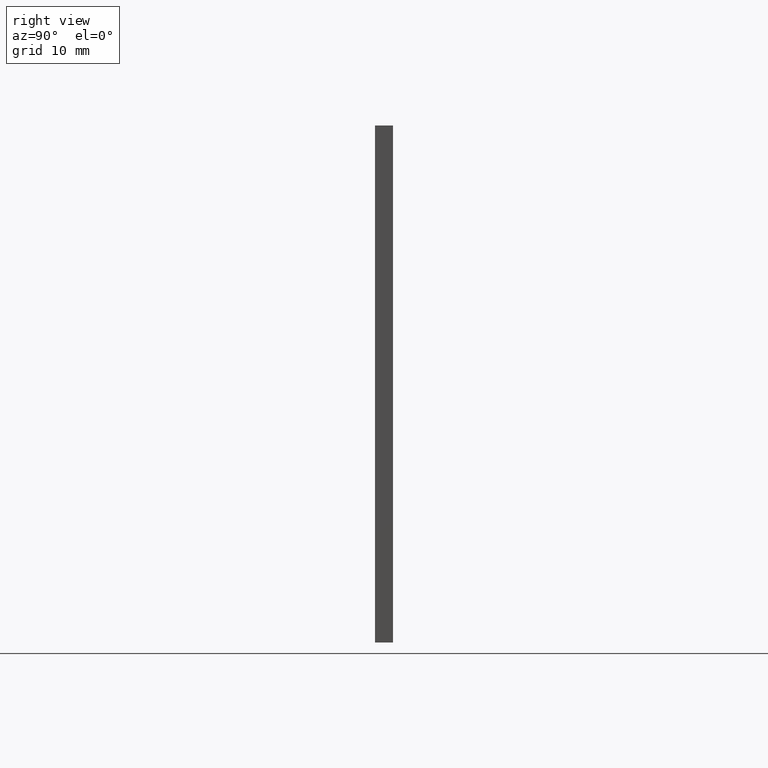
[diagram: clean part render]
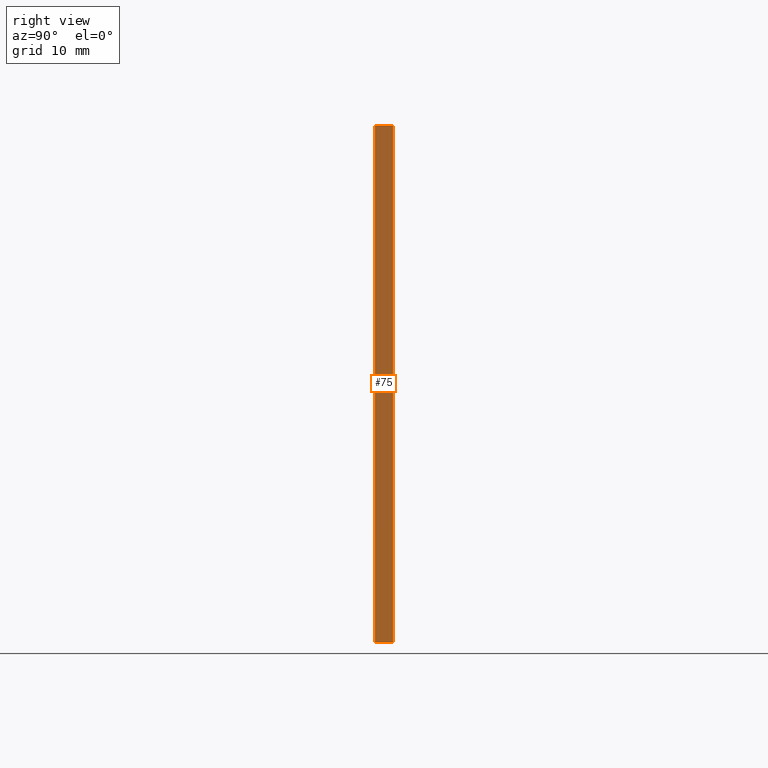
[diagram: same view with one face highlighted and labeled with its STEP entity id]
A machine part, right view. The second image highlights one B-rep face of the part: STEP entity #75.
In plain terms, the highlighted planar face has unit normal (-1, 0, 0).
Its self-contained STEP definition (entity closure, byte-faithful):
#3 = LINE ( 'NONE', #182, #83 ) ;
#12 = DIRECTION ( 'NONE',  ( 0.0000000000000000000, 0.0000000000000000000, 1.000000000000000000 ) ) ;
#13 = DIRECTION ( 'NONE',  ( -1.000000000000000000, 0.0000000000000000000, 0.0000000000000000000 ) ) ;
#26 = ORIENTED_EDGE ( 'NONE', *, *, #111, .T. ) ;
#30 = CARTESIAN_POINT ( 'NONE',  ( 24.99999999999999300, 1.740000000000000000, 25.00000000000000000 ) ) ;
#31 = EDGE_CURVE ( 'NONE', #165, #197, #181, .T. ) ;
#38 = FACE_OUTER_BOUND ( 'NONE', #167, .T. ) ;
#39 = CARTESIAN_POINT ( 'NONE',  ( 24.99999999999999300, 1.740000000000000000, -25.00000000000000000 ) ) ;
#45 = EDGE_CURVE ( 'NONE', #165, #185, #138, .T. ) ;
#57 = EDGE_CURVE ( 'NONE', #197, #81, #3, .T. ) ;
#64 = DIRECTION ( 'NONE',  ( 0.0000000000000000000, 0.0000000000000000000, -1.000000000000000000 ) ) ;
#68 = CARTESIAN_POINT ( 'NONE',  ( 24.99999999999999300, 1.740000000000000000, 25.00000000000000000 ) ) ;
#69 = PLANE ( 'NONE',  #139 ) ;
#75 = ADVANCED_FACE ( 'NONE', ( #38 ), #69, .F. ) ;
#81 = VERTEX_POINT ( 'NONE', #186 ) ;
#83 = VECTOR ( 'NONE', #154, 1000.000000000000000 ) ;
#84 = CARTESIAN_POINT ( 'NONE',  ( 24.99999999999999300, 1.740000000000000000, 25.00000000000000000 ) ) ;
#98 = VECTOR ( 'NONE', #64, 1000.000000000000000 ) ;
#105 = CARTESIAN_POINT ( 'NONE',  ( 24.99999999999999300, 0.0000000000000000000, 25.00000000000000000 ) ) ;
#111 = EDGE_CURVE ( 'NONE', #185, #81, #190, .T. ) ;
#114 = VECTOR ( 'NONE', #128, 1000.000000000000000 ) ;
#116 = ORIENTED_EDGE ( 'NONE', *, *, #57, .F. ) ;
#128 = DIRECTION ( 'NONE',  ( 0.0000000000000000000, 0.0000000000000000000, -1.000000000000000000 ) ) ;
#138 = LINE ( 'NONE', #84, #173 ) ;
#139 = AXIS2_PLACEMENT_3D ( 'NONE', #68, #13, #12 ) ;
#154 = DIRECTION ( 'NONE',  ( -0.0000000000000000000, -1.000000000000000000, -0.0000000000000000000 ) ) ;
#165 = VERTEX_POINT ( 'NONE', #177 ) ;
#167 = EDGE_LOOP ( 'NONE', ( #26, #116, #193, #191 ) ) ;
#173 = VECTOR ( 'NONE', #184, 1000.000000000000000 ) ;
#177 = CARTESIAN_POINT ( 'NONE',  ( 24.99999999999999300, 1.740000000000000000, 25.00000000000000000 ) ) ;
#181 = LINE ( 'NONE', #30, #98 ) ;
#182 = CARTESIAN_POINT ( 'NONE',  ( 24.99999999999999300, 1.740000000000000000, -25.00000000000000000 ) ) ;
#184 = DIRECTION ( 'NONE',  ( -0.0000000000000000000, -1.000000000000000000, -0.0000000000000000000 ) ) ;
#185 = VERTEX_POINT ( 'NONE', #105 ) ;
#186 = CARTESIAN_POINT ( 'NONE',  ( 24.99999999999999300, 0.0000000000000000000, -25.00000000000000000 ) ) ;
#189 = CARTESIAN_POINT ( 'NONE',  ( 24.99999999999999300, 0.0000000000000000000, 25.00000000000000000 ) ) ;
#190 = LINE ( 'NONE', #189, #114 ) ;
#191 = ORIENTED_EDGE ( 'NONE', *, *, #45, .T. ) ;
#193 = ORIENTED_EDGE ( 'NONE', *, *, #31, .F. ) ;
#197 = VERTEX_POINT ( 'NONE', #39 ) ;